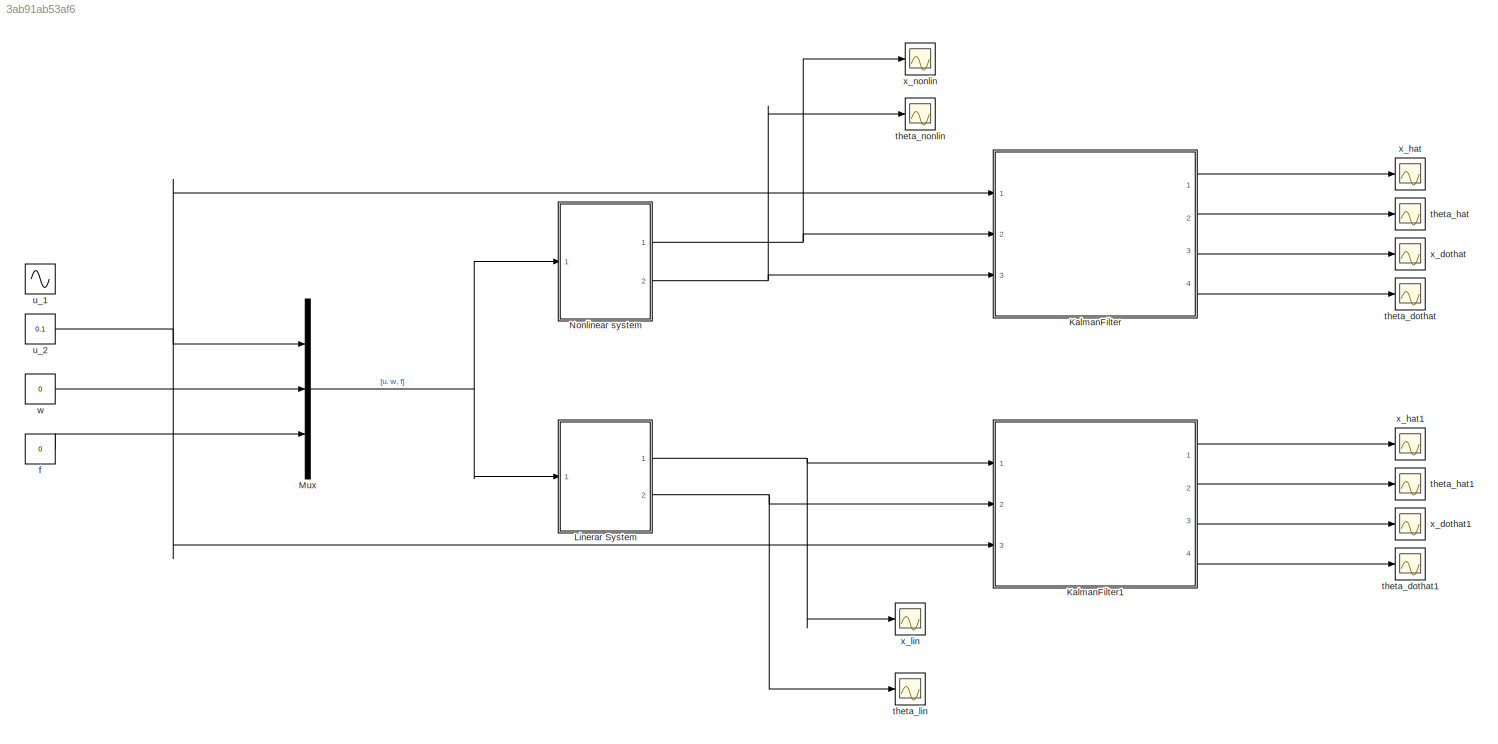
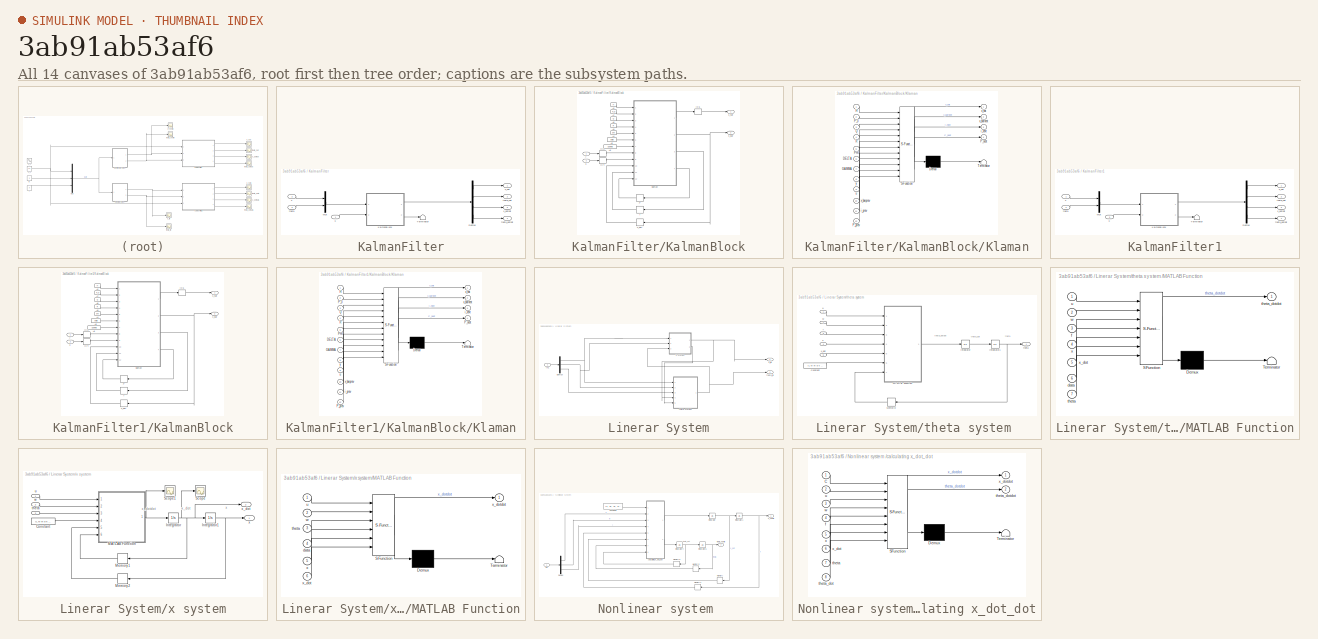
[diagram: thumbnail index - all 14 canvases of the model, root first then tree order]
MODEL slx_3ab91ab53af6
KIND model
BLOCK [SubSystem] KalmanFilter
  Ports = [3, 4]
  RequestExecContextInheritance = off
BLOCK [Demux] KalmanFilter/Demux
  DisplayOption = bar
  Ports = [1, 4]
BLOCK [SubSystem] KalmanFilter/KalmanBlock
  Ports = [2, 2]
  RequestExecContextInheritance = off
BLOCK [Constant] KalmanFilter/KalmanBlock/A2
  Value = H
BLOCK [Constant] KalmanFilter/KalmanBlock/A4
  Value = phi
BLOCK [Constant] KalmanFilter/KalmanBlock/A5
  Value = delta
BLOCK [Constant] KalmanFilter/KalmanBlock/A6
  Value = gamma
BLOCK [Constant] KalmanFilter/KalmanBlock/A7
  Value = P_0
BLOCK [Constant] KalmanFilter/KalmanBlock/A8
  Value = Q
BLOCK [Constant] KalmanFilter/KalmanBlock/A9
  Value = R
BLOCK [InitialCondition] KalmanFilter/KalmanBlock/IC3
  Value = y_0
BLOCK [InitialCondition] KalmanFilter/KalmanBlock/IC4
  Value = 0
BLOCK [InitialCondition] KalmanFilter/KalmanBlock/IC5
  Value = X_0
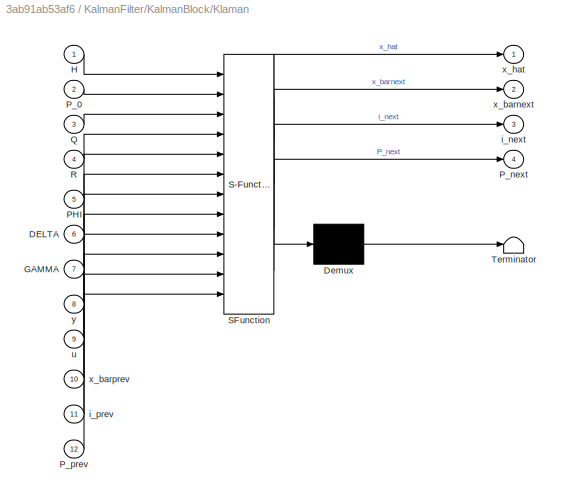
BLOCK [SubSystem] KalmanFilter/KalmanBlock/Klaman
  ErrorFcn = Stateflow.Translate.translate
  PermitHierarchicalResolution = ExplicitOnly
  Ports = [12, 4]
  RequestExecContextInheritance = off
  SFBlockType = MATLAB Function
  TreatAsAtomicUnit = on
BLOCK [Demux] KalmanFilter/KalmanBlock/Klaman/ Demux 
  Outputs = 1
  Ports = [1, 1]
BLOCK [S-Function] KalmanFilter/KalmanBlock/Klaman/ SFunction 
  EnableBusSupport = on
  FunctionName = sf_sfun
  PortCounts = [12 5]
  Ports = [12, 5]
  Tag = Stateflow S-Function TestSamlet 2
BLOCK [Terminator] KalmanFilter/KalmanBlock/Klaman/ Terminator 
BLOCK [Inport] KalmanFilter/KalmanBlock/Klaman/DELTA
  IconDisplay = Port number
  Port = 6
BLOCK [Inport] KalmanFilter/KalmanBlock/Klaman/GAMMA
  IconDisplay = Port number
  Port = 7
BLOCK [Inport] KalmanFilter/KalmanBlock/Klaman/H
  IconDisplay = Port number
BLOCK [Inport] KalmanFilter/KalmanBlock/Klaman/PHI
  IconDisplay = Port number
  Port = 5
BLOCK [Inport] KalmanFilter/KalmanBlock/Klaman/P_0
  IconDisplay = Port number
  Port = 2
BLOCK [Outport] KalmanFilter/KalmanBlock/Klaman/P_next
  IconDisplay = Port number
  Port = 4
BLOCK [Inport] KalmanFilter/KalmanBlock/Klaman/P_prev
  IconDisplay = Port number
  Port = 12
BLOCK [Inport] KalmanFilter/KalmanBlock/Klaman/Q
  IconDisplay = Port number
  Port = 3
BLOCK [Inport] KalmanFilter/KalmanBlock/Klaman/R
  IconDisplay = Port number
  Port = 4
BLOCK [Outport] KalmanFilter/KalmanBlock/Klaman/i_next
  IconDisplay = Port number
  Port = 3
BLOCK [Inport] KalmanFilter/KalmanBlock/Klaman/i_prev
  IconDisplay = Port number
  Port = 11
BLOCK [Inport] KalmanFilter/KalmanBlock/Klaman/u
  IconDisplay = Port number
  Port = 9
BLOCK [Outport] KalmanFilter/KalmanBlock/Klaman/x_barnext
  IconDisplay = Port number
  Port = 2
BLOCK [Inport] KalmanFilter/KalmanBlock/Klaman/x_barprev
  IconDisplay = Port number
  Port = 10
BLOCK [Outport] KalmanFilter/KalmanBlock/Klaman/x_hat
  IconDisplay = Port number
BLOCK [Inport] KalmanFilter/KalmanBlock/Klaman/y
  IconDisplay = Port number
  Port = 8
BLOCK [Memory] KalmanFilter/KalmanBlock/P
  X0 = P_0
BLOCK [Memory] KalmanFilter/KalmanBlock/i 
BLOCK [Inport] KalmanFilter/KalmanBlock/u 
  IconDisplay = Port number
  Port = 2
BLOCK [Outport] KalmanFilter/KalmanBlock/x_bar
  IconDisplay = Port number
  Port = 2
BLOCK [Memory] KalmanFilter/KalmanBlock/x_bar'
  X0 = X_0
BLOCK [Outport] KalmanFilter/KalmanBlock/x_hat
  IconDisplay = Port number
BLOCK [Inport] KalmanFilter/KalmanBlock/y 
  IconDisplay = Port number
BLOCK [Mux] KalmanFilter/Mux
  DisplayOption = bar
  Inputs = 2
  Ports = [2, 1]
BLOCK [Terminator] KalmanFilter/Terminator
BLOCK [Inport] KalmanFilter/theta
  IconDisplay = Port number
  Port = 3
BLOCK [Outport] KalmanFilter/theta_dothat
  IconDisplay = Port number
  Port = 4
BLOCK [Outport] KalmanFilter/theta_hat
  IconDisplay = Port number
  Port = 2
BLOCK [Inport] KalmanFilter/u 
  IconDisplay = Port number
BLOCK [Inport] KalmanFilter/x
  IconDisplay = Port number
  Port = 2
BLOCK [Outport] KalmanFilter/x_dothat
  IconDisplay = Port number
  Port = 3
BLOCK [Outport] KalmanFilter/x_hat
  IconDisplay = Port number
BLOCK [SubSystem] KalmanFilter1
  Ports = [3, 4]
  RequestExecContextInheritance = off
BLOCK [Demux] KalmanFilter1/Demux
  DisplayOption = bar
  Ports = [1, 4]
BLOCK [SubSystem] KalmanFilter1/KalmanBlock
  Ports = [2, 2]
  RequestExecContextInheritance = off
BLOCK [Constant] KalmanFilter1/KalmanBlock/A2
  Value = H
BLOCK [Constant] KalmanFilter1/KalmanBlock/A4
  Value = phi
BLOCK [Constant] KalmanFilter1/KalmanBlock/A5
  Value = delta
BLOCK [Constant] KalmanFilter1/KalmanBlock/A6
  Value = gamma
BLOCK [Constant] KalmanFilter1/KalmanBlock/A7
  Value = P_0
BLOCK [Constant] KalmanFilter1/KalmanBlock/A8
  Value = Q
BLOCK [Constant] KalmanFilter1/KalmanBlock/A9
  Value = R
BLOCK [InitialCondition] KalmanFilter1/KalmanBlock/IC3
  Value = y_0
BLOCK [InitialCondition] KalmanFilter1/KalmanBlock/IC4
  Value = 0
BLOCK [InitialCondition] KalmanFilter1/KalmanBlock/IC5
  Value = X_0
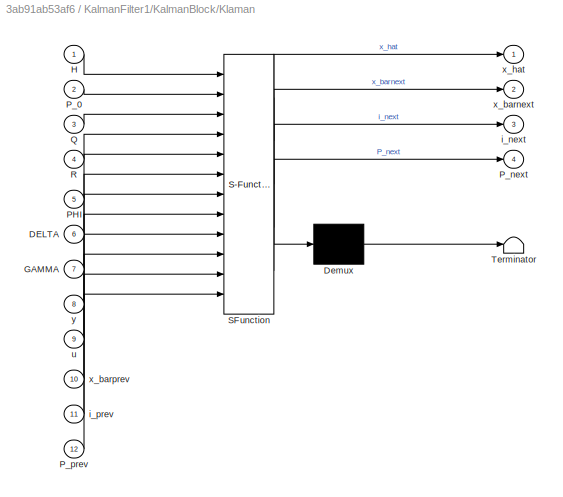
BLOCK [SubSystem] KalmanFilter1/KalmanBlock/Klaman
  ErrorFcn = Stateflow.Translate.translate
  PermitHierarchicalResolution = ExplicitOnly
  Ports = [12, 4]
  RequestExecContextInheritance = off
  SFBlockType = MATLAB Function
  TreatAsAtomicUnit = on
BLOCK [Demux] KalmanFilter1/KalmanBlock/Klaman/ Demux 
  Outputs = 1
  Ports = [1, 1]
BLOCK [S-Function] KalmanFilter1/KalmanBlock/Klaman/ SFunction 
  EnableBusSupport = on
  FunctionName = sf_sfun
  PortCounts = [12 5]
  Ports = [12, 5]
  Tag = Stateflow S-Function TestSamlet 5
BLOCK [Terminator] KalmanFilter1/KalmanBlock/Klaman/ Terminator 
BLOCK [Inport] KalmanFilter1/KalmanBlock/Klaman/DELTA
  IconDisplay = Port number
  Port = 6
BLOCK [Inport] KalmanFilter1/KalmanBlock/Klaman/GAMMA
  IconDisplay = Port number
  Port = 7
BLOCK [Inport] KalmanFilter1/KalmanBlock/Klaman/H
  IconDisplay = Port number
BLOCK [Inport] KalmanFilter1/KalmanBlock/Klaman/PHI
  IconDisplay = Port number
  Port = 5
BLOCK [Inport] KalmanFilter1/KalmanBlock/Klaman/P_0
  IconDisplay = Port number
  Port = 2
BLOCK [Outport] KalmanFilter1/KalmanBlock/Klaman/P_next
  IconDisplay = Port number
  Port = 4
BLOCK [Inport] KalmanFilter1/KalmanBlock/Klaman/P_prev
  IconDisplay = Port number
  Port = 12
BLOCK [Inport] KalmanFilter1/KalmanBlock/Klaman/Q
  IconDisplay = Port number
  Port = 3
BLOCK [Inport] KalmanFilter1/KalmanBlock/Klaman/R
  IconDisplay = Port number
  Port = 4
BLOCK [Outport] KalmanFilter1/KalmanBlock/Klaman/i_next
  IconDisplay = Port number
  Port = 3
BLOCK [Inport] KalmanFilter1/KalmanBlock/Klaman/i_prev
  IconDisplay = Port number
  Port = 11
BLOCK [Inport] KalmanFilter1/KalmanBlock/Klaman/u
  IconDisplay = Port number
  Port = 9
BLOCK [Outport] KalmanFilter1/KalmanBlock/Klaman/x_barnext
  IconDisplay = Port number
  Port = 2
BLOCK [Inport] KalmanFilter1/KalmanBlock/Klaman/x_barprev
  IconDisplay = Port number
  Port = 10
BLOCK [Outport] KalmanFilter1/KalmanBlock/Klaman/x_hat
  IconDisplay = Port number
BLOCK [Inport] KalmanFilter1/KalmanBlock/Klaman/y
  IconDisplay = Port number
  Port = 8
BLOCK [Memory] KalmanFilter1/KalmanBlock/P
  X0 = P_0
BLOCK [Memory] KalmanFilter1/KalmanBlock/i 
BLOCK [Inport] KalmanFilter1/KalmanBlock/u 
  IconDisplay = Port number
  Port = 2
BLOCK [Outport] KalmanFilter1/KalmanBlock/x_bar
  IconDisplay = Port number
  Port = 2
BLOCK [Memory] KalmanFilter1/KalmanBlock/x_bar'
  X0 = X_0
BLOCK [Outport] KalmanFilter1/KalmanBlock/x_hat
  IconDisplay = Port number
BLOCK [Inport] KalmanFilter1/KalmanBlock/y 
  IconDisplay = Port number
BLOCK [Mux] KalmanFilter1/Mux
  DisplayOption = bar
  Inputs = 2
  Ports = [2, 1]
BLOCK [Terminator] KalmanFilter1/Terminator
BLOCK [Inport] KalmanFilter1/theta
  IconDisplay = Port number
  Port = 2
BLOCK [Outport] KalmanFilter1/theta_dothat
  IconDisplay = Port number
  Port = 4
BLOCK [Outport] KalmanFilter1/theta_hat
  IconDisplay = Port number
  Port = 2
BLOCK [Inport] KalmanFilter1/u 
  IconDisplay = Port number
  Port = 3
BLOCK [Inport] KalmanFilter1/x
  IconDisplay = Port number
BLOCK [Outport] KalmanFilter1/x_dothat
  IconDisplay = Port number
  Port = 3
BLOCK [Outport] KalmanFilter1/x_hat
  IconDisplay = Port number
BLOCK [SubSystem] Linerar System
  Ports = [1, 2]
  RequestExecContextInheritance = off
BLOCK [Demux] Linerar System/Demux
  DisplayOption = bar
  Outputs = 3
  Ports = [1, 3]
BLOCK [Inport] Linerar System/In1
  IconDisplay = Port number
BLOCK [SubSystem] Linerar System/theta system 
  Ports = [5, 1]
  RequestExecContextInheritance = off
BLOCK [Constant] Linerar System/theta system /Constant
  SampleTime = 0.01
  Value = [L M m b k g]
  VectorParams1D = off
BLOCK [Integrator] Linerar System/theta system /Integrator
  Ports = [1, 1]
BLOCK [Integrator] Linerar System/theta system /Integrator1
  Ports = [1, 1]
BLOCK [SubSystem] Linerar System/theta system /MATLAB Function
  ErrorFcn = Stateflow.Translate.translate
  PermitHierarchicalResolution = ExplicitOnly
  Ports = [7, 1]
  RequestExecContextInheritance = off
  SFBlockType = MATLAB Function
  TreatAsAtomicUnit = on
BLOCK [Demux] Linerar System/theta system /MATLAB Function/ Demux 
  Outputs = 1
  Ports = [1, 1]
BLOCK [S-Function] Linerar System/theta system /MATLAB Function/ SFunction 
  EnableBusSupport = on
  FunctionName = sf_sfun
  PortCounts = [7 2]
  Ports = [7, 2]
  Tag = Stateflow S-Function TestSamlet 3
BLOCK [Terminator] Linerar System/theta system /MATLAB Function/ Terminator 
BLOCK [Inport] Linerar System/theta system /MATLAB Function/data
  IconDisplay = Port number
  Port = 6
BLOCK [Inport] Linerar System/theta system /MATLAB Function/f
  IconDisplay = Port number
  Port = 3
BLOCK [Inport] Linerar System/theta system /MATLAB Function/theta
  IconDisplay = Port number
  Port = 7
BLOCK [Outport] Linerar System/theta system /MATLAB Function/theta_dotdot
  IconDisplay = Port number
BLOCK [Inport] Linerar System/theta system /MATLAB Function/u
  IconDisplay = Port number
BLOCK [Inport] Linerar System/theta system /MATLAB Function/w
  IconDisplay = Port number
  Port = 2
BLOCK [Inport] Linerar System/theta system /MATLAB Function/x
  IconDisplay = Port number
  Port = 4
BLOCK [Inport] Linerar System/theta system /MATLAB Function/x_dot
  IconDisplay = Port number
  Port = 5
BLOCK [Memory] Linerar System/theta system /Memory2
  X0 = theta_0
BLOCK [Inport] Linerar System/theta system /f
  IconDisplay = Port number
  Port = 3
BLOCK [Outport] Linerar System/theta system /theta
  IconDisplay = Port number
BLOCK [Inport] Linerar System/theta system /u 
  IconDisplay = Port number
BLOCK [Inport] Linerar System/theta system /w
  IconDisplay = Port number
  Port = 2
BLOCK [Inport] Linerar System/theta system /x
  IconDisplay = Port number
  Port = 4
BLOCK [Inport] Linerar System/theta system /x_dot
  IconDisplay = Port number
  Port = 5
BLOCK [Outport] Linerar System/theta_lin
  IconDisplay = Port number
  Port = 2
BLOCK [SubSystem] Linerar System/x system
  Ports = [3, 2]
  RequestExecContextInheritance = off
BLOCK [Constant] Linerar System/x system/Constant
  SampleTime = 0.01
  Value = [L M m b k g]
  VectorParams1D = off
BLOCK [Integrator] Linerar System/x system/Integrator
  Ports = [1, 1]
BLOCK [Integrator] Linerar System/x system/Integrator1
  Ports = [1, 1]
BLOCK [SubSystem] Linerar System/x system/MATLAB Function
  ErrorFcn = Stateflow.Translate.translate
  PermitHierarchicalResolution = ExplicitOnly
  Ports = [6, 1]
  RequestExecContextInheritance = off
  SFBlockType = MATLAB Function
  TreatAsAtomicUnit = on
BLOCK [Demux] Linerar System/x system/MATLAB Function/ Demux 
  Outputs = 1
  Ports = [1, 1]
BLOCK [S-Function] Linerar System/x system/MATLAB Function/ SFunction 
  EnableBusSupport = on
  FunctionName = sf_sfun
  PortCounts = [6 2]
  Ports = [6, 2]
  Tag = Stateflow S-Function TestSamlet 1
BLOCK [Terminator] Linerar System/x system/MATLAB Function/ Terminator 
BLOCK [Inport] Linerar System/x system/MATLAB Function/data
  IconDisplay = Port number
  Port = 4
BLOCK [Inport] Linerar System/x system/MATLAB Function/theta
  IconDisplay = Port number
  Port = 3
BLOCK [Inport] Linerar System/x system/MATLAB Function/u
  IconDisplay = Port number
BLOCK [Inport] Linerar System/x system/MATLAB Function/w
  IconDisplay = Port number
  Port = 2
BLOCK [Inport] Linerar System/x system/MATLAB Function/x
  IconDisplay = Port number
  Port = 5
BLOCK [Inport] Linerar System/x system/MATLAB Function/x_dot
  IconDisplay = Port number
  Port = 6
BLOCK [Outport] Linerar System/x system/MATLAB Function/x_dotdot
  IconDisplay = Port number
BLOCK [Memory] Linerar System/x system/Memory1
  X0 = x_dot0
BLOCK [Memory] Linerar System/x system/Memory2
  X0 = x_0
BLOCK [Scope] Linerar System/x system/Scope
  Floating = off
  NumInputPorts = 1
  Ports = [1]
  SaveName = ScopeData8
  ShowLegends = off
  ZoomMode = yonly
BLOCK [Scope] Linerar System/x system/Scope1
  Floating = off
  NumInputPorts = 1
  Ports = [1]
  SaveName = ScopeData9
  ShowLegends = off
BLOCK [Inport] Linerar System/x system/theta
  IconDisplay = Port number
  Port = 3
BLOCK [Inport] Linerar System/x system/u 
  IconDisplay = Port number
BLOCK [Inport] Linerar System/x system/w
  IconDisplay = Port number
  Port = 2
BLOCK [Outport] Linerar System/x system/x
  IconDisplay = Port number
BLOCK [Outport] Linerar System/x system/x_dot
  IconDisplay = Port number
  Port = 2
BLOCK [Outport] Linerar System/x_lin
  IconDisplay = Port number
BLOCK [Mux] Mux
  DisplayOption = bar
  Inputs = 3
  Ports = [3, 1]
BLOCK [SubSystem] Nonlinear system 
  Ports = [1, 2]
  RequestExecContextInheritance = off
BLOCK [Constant] Nonlinear system /Constant1
  SampleTime = 0.01
  Value = [L, M, m, b, k, g]
BLOCK [Demux] Nonlinear system /Demux
  DisplayOption = bar
  Outputs = 3
  Ports = [1, 3]
BLOCK [Inport] Nonlinear system /In1
  IconDisplay = Port number
BLOCK [Integrator] Nonlinear system /Integrator
  Ports = [1, 1]
BLOCK [Integrator] Nonlinear system /Integrator1
  Ports = [1, 1]
BLOCK [Integrator] Nonlinear system /Integrator4
  Ports = [1, 1]
BLOCK [Integrator] Nonlinear system /Integrator5
  Ports = [1, 1]
BLOCK [Memory] Nonlinear system /Memory
  X0 = x_dot0
BLOCK [Memory] Nonlinear system /Memory1
  X0 = x_0
BLOCK [Memory] Nonlinear system /Memory2
  X0 = theta_0
BLOCK [Memory] Nonlinear system /Memory3
  X0 = theta_dot0
BLOCK [SubSystem] Nonlinear system /calculating x_dot_dot
  ErrorFcn = Stateflow.Translate.translate
  PermitHierarchicalResolution = ExplicitOnly
  Ports = [8, 2]
  RequestExecContextInheritance = off
  SFBlockType = MATLAB Function
  TreatAsAtomicUnit = on
BLOCK [Demux] Nonlinear system /calculating x_dot_dot/ Demux 
  Outputs = 1
  Ports = [1, 1]
BLOCK [S-Function] Nonlinear system /calculating x_dot_dot/ SFunction 
  EnableBusSupport = on
  FunctionName = sf_sfun
  PortCounts = [8 3]
  Ports = [8, 3]
  Tag = Stateflow S-Function TestSamlet 4
BLOCK [Terminator] Nonlinear system /calculating x_dot_dot/ Terminator 
BLOCK [Inport] Nonlinear system /calculating x_dot_dot/C
  IconDisplay = Port number
BLOCK [Inport] Nonlinear system /calculating x_dot_dot/f
  IconDisplay = Port number
  Port = 4
BLOCK [Inport] Nonlinear system /calculating x_dot_dot/theta
  IconDisplay = Port number
  Port = 7
BLOCK [Inport] Nonlinear system /calculating x_dot_dot/theta_dot
  IconDisplay = Port number
  Port = 8
BLOCK [Outport] Nonlinear system /calculating x_dot_dot/theta_dotdot
  IconDisplay = Port number
  Port = 2
BLOCK [Inport] Nonlinear system /calculating x_dot_dot/u
  IconDisplay = Port number
  Port = 2
BLOCK [Inport] Nonlinear system /calculating x_dot_dot/w
  IconDisplay = Port number
  Port = 3
BLOCK [Inport] Nonlinear system /calculating x_dot_dot/x
  IconDisplay = Port number
  Port = 5
BLOCK [Inport] Nonlinear system /calculating x_dot_dot/x_dot
  IconDisplay = Port number
  Port = 6
BLOCK [Outport] Nonlinear system /calculating x_dot_dot/x_dotdot
  IconDisplay = Port number
BLOCK [Outport] Nonlinear system /theta_nonlin
  IconDisplay = Port number
  Port = 2
BLOCK [Outport] Nonlinear system /x_nonlin
  IconDisplay = Port number
BLOCK [Constant] f
  SampleTime = 0.01
  Value = 0
BLOCK [Scope] theta_dothat
  Floating = off
  NumInputPorts = 1
  Ports = [1]
  SaveName = ScopeData4
  ShowLegends = off
BLOCK [Scope] theta_dothat1
  Floating = off
  NumInputPorts = 1
  Ports = [1]
  SaveName = ScopeData10
  ShowLegends = off
BLOCK [Scope] theta_hat
  Floating = off
  NumInputPorts = 1
  Ports = [1]
  SaveName = ScopeData5
  ShowLegends = off
BLOCK [Scope] theta_hat1
  Floating = off
  NumInputPorts = 1
  Ports = [1]
  SaveName = ScopeData11
  ShowLegends = off
BLOCK [Scope] theta_lin
  DataFormat = StructureWithTime
  Floating = off
  LimitDataPoints = off
  NumInputPorts = 1
  Ports = [1]
  SaveName = ScopeData2
  ShowLegends = off
  YMax = 1330376126283863900000000000000000000000.00000
  YMin = -218613906361334390000000000000000000000.00000
BLOCK [Scope] theta_nonlin 
  DataFormat = StructureWithTime
  Floating = off
  LimitDataPoints = off
  NumInputPorts = 1
  Ports = [1]
  SaveName = ScopeData3
  ShowLegends = off
  YMax = 6.80294
  YMin = -0.75588
BLOCK [Sin] u_1
  Amplitude = 0.0001
  Ports = [0, 1]
  SampleTime = 0
BLOCK [Constant] u_2
  SampleTime = 0.01
  Value = 0.1
BLOCK [Constant] w
  SampleTime = 0.01
  Value = 0
BLOCK [Scope] x_dothat
  Floating = off
  NumInputPorts = 1
  Ports = [1]
  SaveName = ScopeData6
  ShowLegends = off
BLOCK [Scope] x_dothat1
  Floating = off
  NumInputPorts = 1
  Ports = [1]
  SaveName = ScopeData13
  ShowLegends = off
BLOCK [Scope] x_hat
  Floating = off
  NumInputPorts = 1
  Ports = [1]
  SaveName = ScopeData7
  ShowLegends = off
  YMax = 140
  YMin = 0
BLOCK [Scope] x_hat1
  Floating = off
  NumInputPorts = 1
  Ports = [1]
  SaveName = ScopeData14
  ShowLegends = off
  YMax = 140
  YMin = 0
BLOCK [Scope] x_lin
  DataFormat = StructureWithTime
  Floating = off
  LimitDataPoints = off
  NumInputPorts = 1
  Ports = [1]
  SaveName = ScopeData1
  ShowLegends = off
  YMax = -6931990601212735700000000000000000000000000000000000000.00000
  YMin = -13874672040532636000000000000000000000000000000000000000.00000
  ZoomMode = yonly
BLOCK [Scope] x_nonlin
  DataFormat = StructureWithTime
  Floating = off
  LimitDataPoints = off
  NumInputPorts = 1
  Ports = [1]
  ShowLegends = off
  YMax = 0.53393
  YMin = -0.54635
ANNOTATION Linerar System/theta system : theta
ANNOTATION Linerar System/theta system : theta_dot
ANNOTATION Linerar System/theta system : theta_dotdot
ANNOTATION Linerar System/x system: x
ANNOTATION Linerar System/x system: x_dot
ANNOTATION Linerar System/x system: x_dotdot
ANNOTATION Nonlinear system : theta_dot
LINE KalmanFilter/Demux:1 -> KalmanFilter/x_hat:1
LINE KalmanFilter/Demux:2 -> KalmanFilter/theta_hat:1
LINE KalmanFilter/Demux:3 -> KalmanFilter/x_dothat:1
LINE KalmanFilter/Demux:4 -> KalmanFilter/theta_dothat:1
LINE KalmanFilter/KalmanBlock/A2:1 -> KalmanFilter/KalmanBlock/Klaman:1
LINE KalmanFilter/KalmanBlock/A4:1 -> KalmanFilter/KalmanBlock/Klaman:5
LINE KalmanFilter/KalmanBlock/A5:1 -> KalmanFilter/KalmanBlock/Klaman:6
LINE KalmanFilter/KalmanBlock/A6:1 -> KalmanFilter/KalmanBlock/Klaman:7
LINE KalmanFilter/KalmanBlock/A7:1 -> KalmanFilter/KalmanBlock/Klaman:2
LINE KalmanFilter/KalmanBlock/A8:1 -> KalmanFilter/KalmanBlock/Klaman:3
LINE KalmanFilter/KalmanBlock/A9:1 -> KalmanFilter/KalmanBlock/Klaman:4
LINE KalmanFilter/KalmanBlock/IC3:1 -> KalmanFilter/KalmanBlock/Klaman:8
LINE KalmanFilter/KalmanBlock/IC4:1 -> KalmanFilter/KalmanBlock/Klaman:9
LINE KalmanFilter/KalmanBlock/IC5:1 -> KalmanFilter/KalmanBlock/x_hat:1
LINE KalmanFilter/KalmanBlock/Klaman:1 -> KalmanFilter/KalmanBlock/IC5:1
NET KalmanFilter/KalmanBlock/Klaman:2 -> KalmanFilter/KalmanBlock/x_bar':1, KalmanFilter/KalmanBlock/x_bar:1
LINE KalmanFilter/KalmanBlock/Klaman:3 -> KalmanFilter/KalmanBlock/i :1
LINE KalmanFilter/KalmanBlock/Klaman:4 -> KalmanFilter/KalmanBlock/P:1
LINE KalmanFilter/KalmanBlock/P:1 -> KalmanFilter/KalmanBlock/Klaman:12
LINE KalmanFilter/KalmanBlock/i :1 -> KalmanFilter/KalmanBlock/Klaman:11
LINE KalmanFilter/KalmanBlock/u :1 -> KalmanFilter/KalmanBlock/IC4:1
LINE KalmanFilter/KalmanBlock/x_bar':1 -> KalmanFilter/KalmanBlock/Klaman:10
LINE KalmanFilter/KalmanBlock/y :1 -> KalmanFilter/KalmanBlock/IC3:1
LINE KalmanFilter/KalmanBlock:1 -> KalmanFilter/Demux:1
LINE KalmanFilter/KalmanBlock:2 -> KalmanFilter/Terminator:1
LINE KalmanFilter/Mux:1 -> KalmanFilter/KalmanBlock:1
LINE KalmanFilter/theta:1 -> KalmanFilter/Mux:2
LINE KalmanFilter/u :1 -> KalmanFilter/KalmanBlock:2
LINE KalmanFilter/x:1 -> KalmanFilter/Mux:1
LINE KalmanFilter1/Demux:1 -> KalmanFilter1/x_hat:1
LINE KalmanFilter1/Demux:2 -> KalmanFilter1/theta_hat:1
LINE KalmanFilter1/Demux:3 -> KalmanFilter1/x_dothat:1
LINE KalmanFilter1/Demux:4 -> KalmanFilter1/theta_dothat:1
LINE KalmanFilter1/KalmanBlock/A2:1 -> KalmanFilter1/KalmanBlock/Klaman:1
LINE KalmanFilter1/KalmanBlock/A4:1 -> KalmanFilter1/KalmanBlock/Klaman:5
LINE KalmanFilter1/KalmanBlock/A5:1 -> KalmanFilter1/KalmanBlock/Klaman:6
LINE KalmanFilter1/KalmanBlock/A6:1 -> KalmanFilter1/KalmanBlock/Klaman:7
LINE KalmanFilter1/KalmanBlock/A7:1 -> KalmanFilter1/KalmanBlock/Klaman:2
LINE KalmanFilter1/KalmanBlock/A8:1 -> KalmanFilter1/KalmanBlock/Klaman:3
LINE KalmanFilter1/KalmanBlock/A9:1 -> KalmanFilter1/KalmanBlock/Klaman:4
LINE KalmanFilter1/KalmanBlock/IC3:1 -> KalmanFilter1/KalmanBlock/Klaman:8
LINE KalmanFilter1/KalmanBlock/IC4:1 -> KalmanFilter1/KalmanBlock/Klaman:9
LINE KalmanFilter1/KalmanBlock/IC5:1 -> KalmanFilter1/KalmanBlock/x_hat:1
LINE KalmanFilter1/KalmanBlock/Klaman:1 -> KalmanFilter1/KalmanBlock/IC5:1
NET KalmanFilter1/KalmanBlock/Klaman:2 -> KalmanFilter1/KalmanBlock/x_bar':1, KalmanFilter1/KalmanBlock/x_bar:1
LINE KalmanFilter1/KalmanBlock/Klaman:3 -> KalmanFilter1/KalmanBlock/i :1
LINE KalmanFilter1/KalmanBlock/Klaman:4 -> KalmanFilter1/KalmanBlock/P:1
LINE KalmanFilter1/KalmanBlock/P:1 -> KalmanFilter1/KalmanBlock/Klaman:12
LINE KalmanFilter1/KalmanBlock/i :1 -> KalmanFilter1/KalmanBlock/Klaman:11
LINE KalmanFilter1/KalmanBlock/u :1 -> KalmanFilter1/KalmanBlock/IC4:1
LINE KalmanFilter1/KalmanBlock/x_bar':1 -> KalmanFilter1/KalmanBlock/Klaman:10
LINE KalmanFilter1/KalmanBlock/y :1 -> KalmanFilter1/KalmanBlock/IC3:1
LINE KalmanFilter1/KalmanBlock:1 -> KalmanFilter1/Demux:1
LINE KalmanFilter1/KalmanBlock:2 -> KalmanFilter1/Terminator:1
LINE KalmanFilter1/Mux:1 -> KalmanFilter1/KalmanBlock:1
LINE KalmanFilter1/theta:1 -> KalmanFilter1/Mux:2
LINE KalmanFilter1/u :1 -> KalmanFilter1/KalmanBlock:2
LINE KalmanFilter1/x:1 -> KalmanFilter1/Mux:1
LINE KalmanFilter1:1 -> x_hat1:1
LINE KalmanFilter1:2 -> theta_hat1:1
LINE KalmanFilter1:3 -> x_dothat1:1
LINE KalmanFilter1:4 -> theta_dothat1:1
LINE KalmanFilter:1 -> x_hat:1
LINE KalmanFilter:2 -> theta_hat:1
LINE KalmanFilter:3 -> x_dothat:1
LINE KalmanFilter:4 -> theta_dothat:1
NET Linerar System/Demux:1 -> Linerar System/theta system :1, Linerar System/x system:1
NET Linerar System/Demux:2 -> Linerar System/theta system :2, Linerar System/x system:2
LINE Linerar System/Demux:3 -> Linerar System/theta system :3
LINE Linerar System/In1:1 -> Linerar System/Demux:1
LINE Linerar System/theta system /Constant:1 -> Linerar System/theta system /MATLAB Function:6
NET Linerar System/theta system /Integrator1:1 -> Linerar System/theta system /Memory2:1, Linerar System/theta system /theta:1
LINE Linerar System/theta system /Integrator:1 -> Linerar System/theta system /Integrator1:1
LINE Linerar System/theta system /MATLAB Function:1 -> Linerar System/theta system /Integrator:1
LINE Linerar System/theta system /Memory2:1 -> Linerar System/theta system /MATLAB Function:7
LINE Linerar System/theta system /f:1 -> Linerar System/theta system /MATLAB Function:3
LINE Linerar System/theta system /u :1 -> Linerar System/theta system /MATLAB Function:1
LINE Linerar System/theta system /w:1 -> Linerar System/theta system /MATLAB Function:2
LINE Linerar System/theta system /x:1 -> Linerar System/theta system /MATLAB Function:4
LINE Linerar System/theta system /x_dot:1 -> Linerar System/theta system /MATLAB Function:5
NET Linerar System/theta system :1 -> Linerar System/theta_lin:1, Linerar System/x system:3
LINE Linerar System/x system/Constant:1 -> Linerar System/x system/MATLAB Function:4
NET Linerar System/x system/Integrator1:1 -> Linerar System/x system/Memory2:1, Linerar System/x system/x:1
NET Linerar System/x system/Integrator:1 -> Linerar System/x system/Integrator1:1, Linerar System/x system/Memory1:1, Linerar System/x system/Scope:1, Linerar System/x system/x_dot:1
NET Linerar System/x system/MATLAB Function:1 -> Linerar System/x system/Integrator:1, Linerar System/x system/Scope1:1
LINE Linerar System/x system/Memory1:1 -> Linerar System/x system/MATLAB Function:6
LINE Linerar System/x system/Memory2:1 -> Linerar System/x system/MATLAB Function:5
LINE Linerar System/x system/theta:1 -> Linerar System/x system/MATLAB Function:3
LINE Linerar System/x system/u :1 -> Linerar System/x system/MATLAB Function:1
LINE Linerar System/x system/w:1 -> Linerar System/x system/MATLAB Function:2
NET Linerar System/x system:1 -> Linerar System/theta system :4, Linerar System/x_lin:1
LINE Linerar System/x system:2 -> Linerar System/theta system :5
NET Linerar System:1 -> KalmanFilter1:1, x_lin:1
NET Linerar System:2 -> KalmanFilter1:2, theta_lin:1
NET Mux:1 -> Linerar System:1, Nonlinear system :1
LINE Nonlinear system /Constant1:1 -> Nonlinear system /calculating x_dot_dot:1
LINE Nonlinear system /Demux:1 -> Nonlinear system /calculating x_dot_dot:2
LINE Nonlinear system /Demux:2 -> Nonlinear system /calculating x_dot_dot:3
LINE Nonlinear system /Demux:3 -> Nonlinear system /calculating x_dot_dot:4
LINE Nonlinear system /In1:1 -> Nonlinear system /Demux:1
NET Nonlinear system /Integrator1:1 -> Nonlinear system /Memory1:1, Nonlinear system /x_nonlin:1
NET Nonlinear system /Integrator4:1 -> Nonlinear system /Integrator5:1, Nonlinear system /Memory3:1
NET Nonlinear system /Integrator5:1 -> Nonlinear system /Memory2:1, Nonlinear system /theta_nonlin:1
NET Nonlinear system /Integrator:1 -> Nonlinear system /Integrator1:1, Nonlinear system /Memory:1
LINE Nonlinear system /Memory1:1 -> Nonlinear system /calculating x_dot_dot:5
LINE Nonlinear system /Memory2:1 -> Nonlinear system /calculating x_dot_dot:7
LINE Nonlinear system /Memory3:1 -> Nonlinear system /calculating x_dot_dot:8
LINE Nonlinear system /Memory:1 -> Nonlinear system /calculating x_dot_dot:6
LINE Nonlinear system /calculating x_dot_dot:1 -> Nonlinear system /Integrator:1
LINE Nonlinear system /calculating x_dot_dot:2 -> Nonlinear system /Integrator4:1
NET Nonlinear system :1 -> KalmanFilter:2, x_nonlin:1
NET Nonlinear system :2 -> KalmanFilter:3, theta_nonlin :1
LINE f:1 -> Mux:3
NET u_2:1 -> KalmanFilter1:3, KalmanFilter:1, Mux:1
LINE w:1 -> Mux:2
note: NET lines group one-source signal fan-out (src -> all destinations, sorted); 1:1 wires keep LINE
CHART Linerar System/x system/MATLAB Function states=1 transitions=1
  STATE_LABEL 'eML_blk_kernel()'
  STATE_LABEL 'SCRIPT:\nfunction x_dotdot  = fcn(u,w,theta,data,x,x_dot)\nL=data(1);\nM=data(2);\nm=data(3);\nb=data(4);\nk=data(5);\ng=data(6);\n\nx_dotdot=(u-w-m*g*theta*180/pi-b*x_dot-k*x)/(M);\n\n\nend'
CHART KalmanFilter/KalmanBlock/Klaman states=1 transitions=1
  STATE_LABEL 'eML_blk_kernel()'
  STATE_LABEL "SCRIPT:\nfunction [x_hat,x_barnext,i_next,P_next] = KalmanFilter(H,P_0,Q,R,PHI,DELTA,GAMMA,y,u,x_barprev,i_prev,P_prev)\nI=eye(4);\nif i_prev ==0\n    x_barnext=x_barprev;\n    x_hat=x_barprev;\n    P_next=P_0;\nelse\n    K=P_prev*(H')*inv(H*P_prev*(H')+R);\n    x_hat=x_barprev+K*(y-H*x_barprev);\n    P_hat=(I-K*H)*P_prev*(I-K*H)'+K*R*K';\n    \n    x_barnext=PHI*x_hat+DELTA*u;\n    P_next=PHI*P_hat*PHI'+GAMMA...<+36ch>"
CHART Linerar System/theta system
/MATLAB Function states=1 transitions=1
  STATE_LABEL 'eML_blk_kernel()'
  STATE_LABEL 'SCRIPT:\nfunction theta_dotdot  = fcn(u,w,f,x,x_dot,data,theta)\nL=data(1);\nM=data(2);\nm=data(3);\nb=data(4);\nk=data(5);\ng=data(6);\n\ntheta_dotdot=(-u+w+(m+M)*g*theta*180/pi-(M/m)*f+b*x_dot+k*x)/(L*M);\n\nend'
CHART Nonlinear system
/calculating x_dot_dot states=1 transitions=1
  STATE_LABEL 'eML_blk_kernel()'
  STATE_LABEL 'SCRIPT:\nfunction [x_dotdot, theta_dotdot]= fcn(C,u, w, f, x, x_dot, theta, theta_dot)\n%extracting the know parameters from vector C\nL = C(1); \nM= C(2); \nm=C(3); \nb = C(4); \nk = C(5); \ng = C(6);\n\n%calculating x_dot_dot\n x_dotdot = (u - f - w + f*cos(theta)^2 ...\n            + m*L*theta_dot^2*sin(theta) ...\n            -m*g*sin(theta)*cos(theta)...\n            -b*x_dot -k*x )/(M + m*sin(theta)^2); \n...<+302ch>'
CHART KalmanFilter1/KalmanBlock/Klaman states=1 transitions=1
  STATE_LABEL 'eML_blk_kernel()'
  STATE_LABEL "SCRIPT:\nfunction [x_hat,x_barnext,i_next,P_next] = KalmanFilter(H,P_0,Q,R,PHI,DELTA,GAMMA,y,u,x_barprev,i_prev,P_prev)\nI=eye(4);\nif i_prev ==0\n    x_barnext=x_barprev;\n    x_hat=x_barprev;\n    P_next=P_0;\nelse\n    K=P_prev*(H')*inv(H*P_prev*(H')+R);\n    x_hat=x_barprev+K*(y-H*x_barprev);\n    P_hat=(I-K*H)*P_prev*(I-K*H)'+K*R*K';\n    \n    x_barnext=PHI*x_hat+DELTA*u;\n    P_next=PHI*P_hat*PHI'+GAMMA...<+36ch>"
